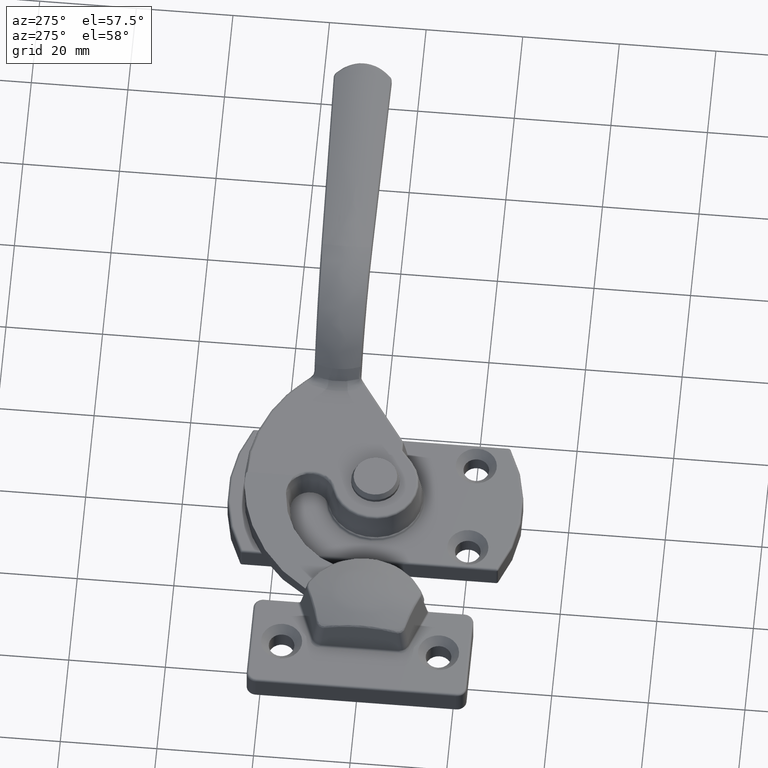
[diagram: clean part render]
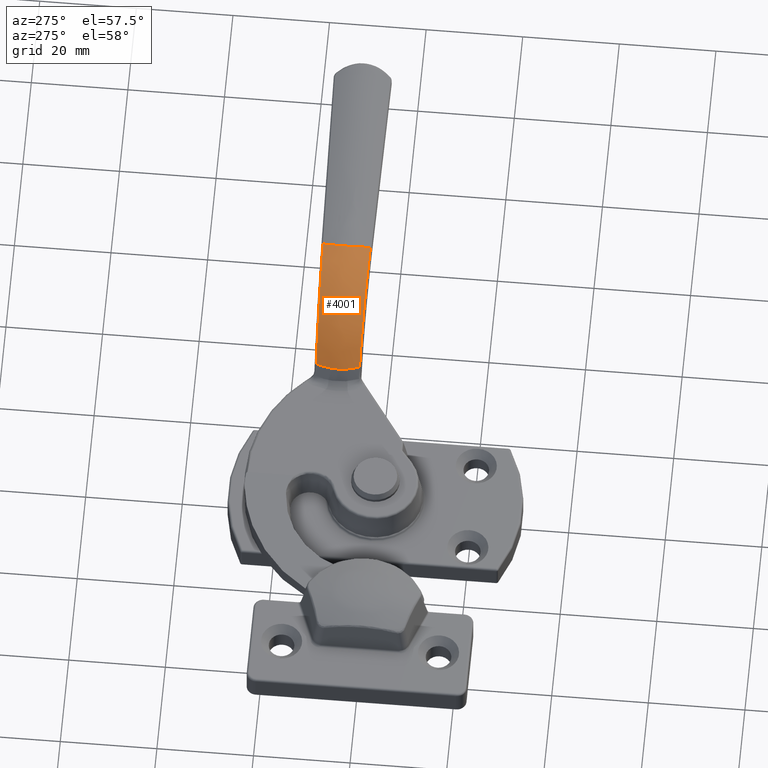
[diagram: same view with one face highlighted and labeled with its STEP entity id]
A machine part, auxiliary view. The second image highlights one B-rep face of the part: STEP entity #4001.
In plain terms, the highlighted face is a freeform B-spline surface patch.
Its self-contained STEP definition (entity closure, byte-faithful):
#44=(
BOUNDED_SURFACE()
B_SPLINE_SURFACE(2,2,((#8752,#8753,#8754),(#8755,#8756,#8757),(#8758,#8759,
#8760)),.UNSPECIFIED.,.F.,.F.,.F.)
B_SPLINE_SURFACE_WITH_KNOTS((3,3),(3,3),(2.85969526101118,4.25007711714775),
(0.,0.907571211037051),.UNSPECIFIED.)
GEOMETRIC_REPRESENTATION_ITEM()
RATIONAL_B_SPLINE_SURFACE(((1.,0.898794046299167,1.),(0.767931420238752,
0.690212188476654,0.767931420238752),(1.,0.898794046299167,1.)))
REPRESENTATION_ITEM('')
SURFACE()
);
#948=FACE_OUTER_BOUND('',#1254,.T.);
#1254=EDGE_LOOP('',(#3562,#3563,#3564,#3565,#3566,#3567));
#1514=CIRCLE('',#4452,11.8769101332699);
#1515=CIRCLE('',#4453,11.8769101332699);
#1516=CIRCLE('',#4454,11.8769101332699);
#1517=CIRCLE('',#4455,11.8769101332699);
#1599=B_SPLINE_CURVE_WITH_KNOTS('',3,(#8035,#8036,#8037,#8038,#8039),
 .UNSPECIFIED.,.F.,.F.,(4,1,4),(-7.53032618899807E-16,1.44163362752709,
2.52320549112138),.UNSPECIFIED.);
#1606=B_SPLINE_CURVE_WITH_KNOTS('',3,(#8256,#8257,#8258,#8259,#8260),
 .UNSPECIFIED.,.F.,.F.,(4,1,4),(-4.41886820229242E-15,1.08157186365053,
2.52320549125275),.UNSPECIFIED.);
#1941=VERTEX_POINT('',#7937);
#1943=VERTEX_POINT('',#8034);
#1945=VERTEX_POINT('',#8098);
#1952=VERTEX_POINT('',#8255);
#1976=VERTEX_POINT('',#8740);
#1977=VERTEX_POINT('',#8749);
#2462=EDGE_CURVE('',#1943,#1941,#1599,.T.);
#2476=EDGE_CURVE('',#1945,#1952,#1606,.T.);
#2521=EDGE_CURVE('',#1976,#1952,#1514,.T.);
#2522=EDGE_CURVE('',#1943,#1976,#1515,.T.);
#2523=EDGE_CURVE('',#1941,#1977,#1516,.T.);
#2524=EDGE_CURVE('',#1977,#1945,#1517,.T.);
#3562=ORIENTED_EDGE('',*,*,#2462,.F.);
#3563=ORIENTED_EDGE('',*,*,#2522,.T.);
#3564=ORIENTED_EDGE('',*,*,#2521,.T.);
#3565=ORIENTED_EDGE('',*,*,#2476,.F.);
#3566=ORIENTED_EDGE('',*,*,#2524,.F.);
#3567=ORIENTED_EDGE('',*,*,#2523,.F.);
#4001=ADVANCED_FACE('',(#948),#44,.F.);
#4452=AXIS2_PLACEMENT_3D('',#8741,#5507,#5508);
#4453=AXIS2_PLACEMENT_3D('',#8742,#5509,#5510);
#4454=AXIS2_PLACEMENT_3D('',#8750,#5511,#5512);
#4455=AXIS2_PLACEMENT_3D('',#8751,#5513,#5514);
#5507=DIRECTION('center_axis',(-0.788010753606722,0.,-0.615661475325659));
#5508=DIRECTION('ref_axis',(0.563824636584154,0.401627730571134,-0.721662625620191));
#5509=DIRECTION('center_axis',(-0.788010753606722,0.,-0.615661475325659));
#5510=DIRECTION('ref_axis',(0.563824636584154,0.401627730571134,-0.721662625620191));
#5511=DIRECTION('center_axis',(0.,0.,-1.));
#5512=DIRECTION('ref_axis',(0.915803017049125,0.401627730571135,0.));
#5513=DIRECTION('center_axis',(0.,0.,-1.));
#5514=DIRECTION('ref_axis',(0.915803017049125,0.401627730571135,0.));
#7937=CARTESIAN_POINT('',(25.3776940183677,5.51912517788722,9.46410161513776));
#8034=CARTESIAN_POINT('',(46.2264382067413,5.09099475130984,22.8409073866515));
#8035=CARTESIAN_POINT('Ctrl Pts',(46.2264382067413,5.09099475130984,22.8409073866515));
#8036=CARTESIAN_POINT('Ctrl Pts',(41.371894958161,5.19070903304207,22.2910640393823));
#8037=CARTESIAN_POINT('Ctrl Pts',(33.1415254150783,5.3597284106012,19.0552644722353));
#8038=CARTESIAN_POINT('Ctrl Pts',(27.2716422260846,5.48024236990836,12.6033642708455));
#8039=CARTESIAN_POINT('Ctrl Pts',(25.3776940183677,5.51912517788722,9.46410161513775));
#8098=CARTESIAN_POINT('',(25.3776940183676,14.4808748221128,9.46410161513772));
#8255=CARTESIAN_POINT('',(46.22643820595,14.9090052490042,22.8409073895339));
#8256=CARTESIAN_POINT('Ctrl Pts',(25.3776940183676,14.4808748221128,9.46410161513772));
#8257=CARTESIAN_POINT('Ctrl Pts',(27.271642226183,14.5197576300937,12.6033642710087));
#8258=CARTESIAN_POINT('Ctrl Pts',(33.1416207212977,14.640273548757,19.0551391540467));
#8259=CARTESIAN_POINT('Ctrl Pts',(41.3718949912726,14.8092909676387,22.2910639932771));
#8260=CARTESIAN_POINT('Ctrl Pts',(46.2264382067573,14.9090052486905,22.8409073866294));
#8740=CARTESIAN_POINT('',(45.57261655025,10.,23.6777609504361));
#8741=CARTESIAN_POINT('Origin',(52.8847725652092,10.,14.3186280457987));
#8742=CARTESIAN_POINT('Origin',(52.8847725652092,10.,14.3186280457987));
#8749=CARTESIAN_POINT('',(24.5,10.,9.46410161513776));
#8750=CARTESIAN_POINT('Origin',(36.3769101332699,10.,9.46410161513776));
#8751=CARTESIAN_POINT('Origin',(36.3769101332699,10.,9.46410161513776));
#8752=CARTESIAN_POINT('Ctrl Pts',(27.2562576665799,2.39245815682677,9.46410161513776));
#8753=CARTESIAN_POINT('Ctrl Pts',(34.3263335114058,2.39245815682677,20.365515505266));
#8754=CARTESIAN_POINT('Ctrl Pts',(47.2695382116343,2.39245815682677,21.5058002694601));
#8755=CARTESIAN_POINT('Ctrl Pts',(20.9108023269539,9.99999999999999,9.46410161513776));
#8756=CARTESIAN_POINT('Ctrl Pts',(27.9808781717797,9.99999999999999,23.4604008636909));
#8757=CARTESIAN_POINT('Ctrl Pts',(43.362885815627,9.99999999999999,26.5060873136166));
#8758=CARTESIAN_POINT('Ctrl Pts',(27.2562576665799,17.6075418431732,9.46410161513776));
#8759=CARTESIAN_POINT('Ctrl Pts',(34.3263335114058,17.6075418431732,20.365515505266));
#8760=CARTESIAN_POINT('Ctrl Pts',(47.2695382116343,17.6075418431732,21.5058002694601));